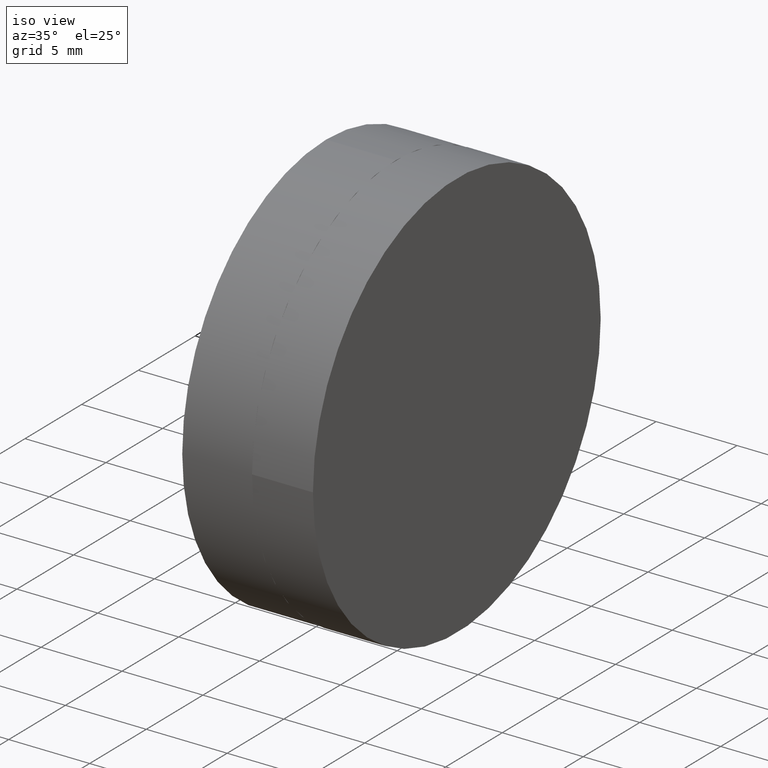
[diagram: clean part render]
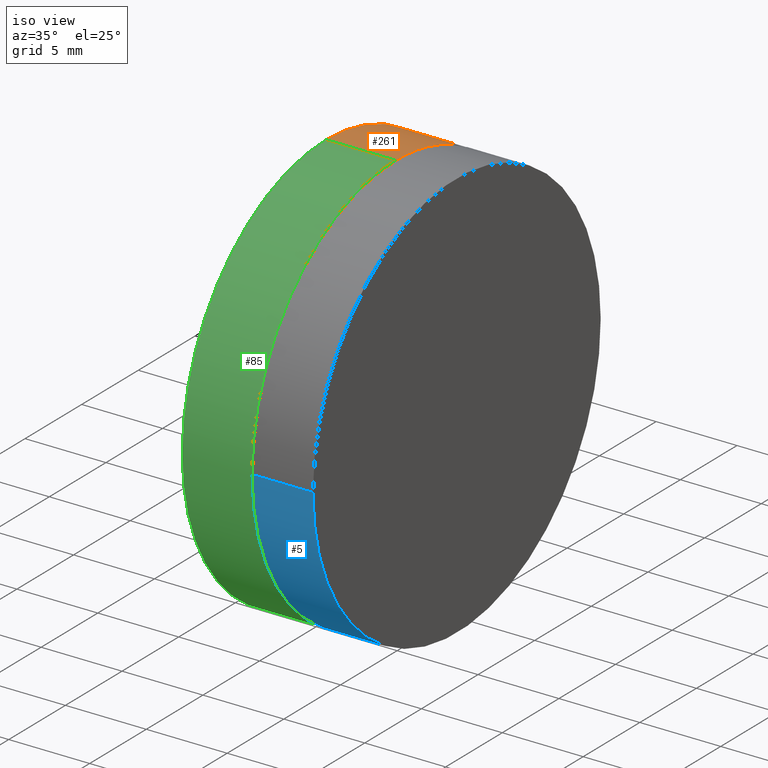
[diagram: same view with three faces highlighted in distinct colors, each labeled with its STEP entity id]
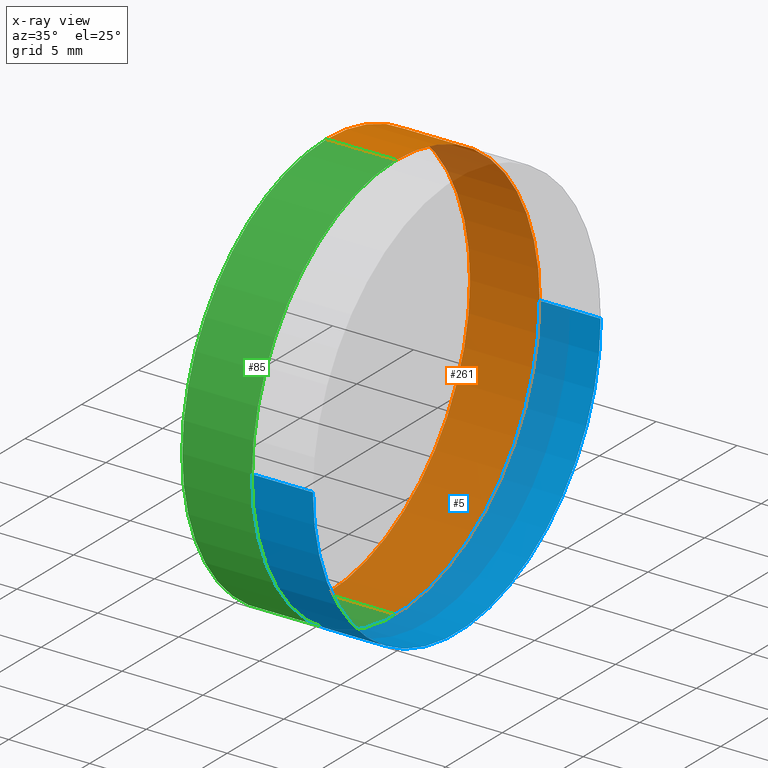
[diagram: x-ray of the same camera — body ghosted, the three highlighted faces saturated]
A machine part, iso view with three faces highlighted in distinct colors.
The next image is the same camera in x-ray (body ghosted, the three faces saturated) — at least one of them is partly hidden behind the body in this view.
Their STEP definitions:

[orange] entity #261 — the highlighted cylindrical surface (partial cylindrical patch) has radius 12.7 mm, axis along (-1, -0, -0).
#4 = AXIS2_PLACEMENT_3D ( 'NONE', #211, #178, #205 ) ;
#15 = DIRECTION ( 'NONE',  ( -1.000000000000000000, -0.000000000000000000, -0.000000000000000000 ) ) ;
#22 = DIRECTION ( 'NONE',  ( 0.000000000000000000, 0.000000000000000000, 1.000000000000000000 ) ) ;
#27 = EDGE_CURVE ( 'NONE', #126, #32, #132, .T. ) ;
#32 = VERTEX_POINT ( 'NONE', #98 ) ;
#33 = DIRECTION ( 'NONE',  ( -1.000000000000000000, -0.000000000000000000, -0.000000000000000000 ) ) ;
#39 = ORIENTED_EDGE ( 'NONE', *, *, #44, .F. ) ;
#44 = EDGE_CURVE ( 'NONE', #134, #212, #218, .T. ) ;
#45 = EDGE_LOOP ( 'NONE', ( #120, #241, #368, #364, #39, #96 ) ) ;
#51 = DIRECTION ( 'NONE',  ( -1.000000000000000000, -0.000000000000000000, -0.000000000000000000 ) ) ;
#53 = CARTESIAN_POINT ( 'NONE',  ( -31.82558590161919909, 32.49878037169512623, 12.69999999999999929 ) ) ;
#57 = AXIS2_PLACEMENT_3D ( 'NONE', #310, #15, #307 ) ;
#70 = CYLINDRICAL_SURFACE ( 'NONE', #78, 12.69999999999999929 ) ;
#78 = AXIS2_PLACEMENT_3D ( 'NONE', #99, #302, #243 ) ;
#79 = CARTESIAN_POINT ( 'NONE',  ( -37.05941295107898981, 32.49878037169512623, -12.69999999999999929 ) ) ;
#96 = ORIENTED_EDGE ( 'NONE', *, *, #149, .T. ) ;
#98 = CARTESIAN_POINT ( 'NONE',  ( -36.13668689039688076, 32.49878037169512623, -12.69999999999999929 ) ) ;
#99 = CARTESIAN_POINT ( 'NONE',  ( -37.05941295107898981, 32.49878037169512623, 0.000000000000000000 ) ) ;
#102 = CARTESIAN_POINT ( 'NONE',  ( -31.82558590161919909, 32.49878037169512623, -12.69999999999999929 ) ) ;
#103 = VERTEX_POINT ( 'NONE', #172 ) ;
#110 = EDGE_CURVE ( 'NONE', #298, #32, #286, .T. ) ;
#120 = ORIENTED_EDGE ( 'NONE', *, *, #208, .T. ) ;
#126 = VERTEX_POINT ( 'NONE', #314 ) ;
#132 = CIRCLE ( 'NONE', #57, 12.69999999999999929 ) ;
#134 = VERTEX_POINT ( 'NONE', #53 ) ;
#149 = EDGE_CURVE ( 'NONE', #134, #103, #240, .T. ) ;
#157 = VECTOR ( 'NONE', #51, 1000.000000000000000 ) ;
#167 = DIRECTION ( 'NONE',  ( -1.000000000000000000, -0.000000000000000000, -0.000000000000000000 ) ) ;
#172 = CARTESIAN_POINT ( 'NONE',  ( -31.82558590161920620, 45.19878037169512197, 0.000000000000000000 ) ) ;
#178 = DIRECTION ( 'NONE',  ( -1.000000000000000000, -0.000000000000000000, -0.000000000000000000 ) ) ;
#182 = CIRCLE ( 'NONE', #4, 12.69999999999999929 ) ;
#203 = CARTESIAN_POINT ( 'NONE',  ( -36.13668689039688076, 32.49878037169512623, 0.000000000000000000 ) ) ;
#205 = DIRECTION ( 'NONE',  ( 0.000000000000000000, 0.000000000000000000, 1.000000000000000000 ) ) ;
#208 = EDGE_CURVE ( 'NONE', #103, #298, #182, .T. ) ;
#211 = CARTESIAN_POINT ( 'NONE',  ( -31.82558590161919909, 32.49878037169512623, 0.000000000000000000 ) ) ;
#212 = VERTEX_POINT ( 'NONE', #300 ) ;
#218 = LINE ( 'NONE', #249, #157 ) ;
#219 = CIRCLE ( 'NONE', #330, 12.69999999999999929 ) ;
#226 = EDGE_CURVE ( 'NONE', #212, #126, #219, .T. ) ;
#239 = DIRECTION ( 'NONE',  ( 0.000000000000000000, 0.000000000000000000, 1.000000000000000000 ) ) ;
#240 = CIRCLE ( 'NONE', #264, 12.69999999999999929 ) ;
#241 = ORIENTED_EDGE ( 'NONE', *, *, #110, .T. ) ;
#243 = DIRECTION ( 'NONE',  ( 0.000000000000000000, 0.000000000000000000, 1.000000000000000000 ) ) ;
#249 = CARTESIAN_POINT ( 'NONE',  ( -37.05941295107898981, 32.49878037169512623, 12.69999999999999929 ) ) ;
#261 = ADVANCED_FACE ( 'NONE', ( #266 ), #70, .T. ) ;
#264 = AXIS2_PLACEMENT_3D ( 'NONE', #348, #167, #22 ) ;
#266 = FACE_OUTER_BOUND ( 'NONE', #45, .T. ) ;
#286 = LINE ( 'NONE', #79, #360 ) ;
#298 = VERTEX_POINT ( 'NONE', #102 ) ;
#300 = CARTESIAN_POINT ( 'NONE',  ( -36.13668689039688076, 32.49878037169512623, 12.69999999999999929 ) ) ;
#302 = DIRECTION ( 'NONE',  ( -1.000000000000000000, -0.000000000000000000, -0.000000000000000000 ) ) ;
#307 = DIRECTION ( 'NONE',  ( 0.000000000000000000, 0.000000000000000000, 1.000000000000000000 ) ) ;
#310 = CARTESIAN_POINT ( 'NONE',  ( -36.13668689039688076, 32.49878037169512623, 0.000000000000000000 ) ) ;
#314 = CARTESIAN_POINT ( 'NONE',  ( -36.13668689039688076, 45.19878037169508644, 0.000000000000000000 ) ) ;
#321 = DIRECTION ( 'NONE',  ( -1.000000000000000000, -0.000000000000000000, -0.000000000000000000 ) ) ;
#330 = AXIS2_PLACEMENT_3D ( 'NONE', #203, #33, #239 ) ;
#348 = CARTESIAN_POINT ( 'NONE',  ( -31.82558590161919909, 32.49878037169512623, 0.000000000000000000 ) ) ;
#360 = VECTOR ( 'NONE', #321, 1000.000000000000000 ) ;
#364 = ORIENTED_EDGE ( 'NONE', *, *, #226, .F. ) ;
#368 = ORIENTED_EDGE ( 'NONE', *, *, #27, .F. ) ;

[blue] entity #5 — the highlighted cylindrical surface (partial cylindrical patch) has radius 12.7 mm, axis along (1, 0, -0).
#5 = ADVANCED_FACE ( 'NONE', ( #128 ), #250, .T. ) ;
#6 = EDGE_LOOP ( 'NONE', ( #7, #48, #64, #71 ) ) ;
#7 = ORIENTED_EDGE ( 'NONE', *, *, #271, .F. ) ;
#10 = VECTOR ( 'NONE', #369, 1000.000000000000000 ) ;
#14 = LINE ( 'NONE', #303, #196 ) ;
#20 = CARTESIAN_POINT ( 'NONE',  ( -28.05941295107895428, 45.19878037169511487, 0.000000000000000000 ) ) ;
#30 = DIRECTION ( 'NONE',  ( 0.000000000000000000, 1.000000000000000000, 0.000000000000000000 ) ) ;
#37 = VERTEX_POINT ( 'NONE', #20 ) ;
#43 = VERTEX_POINT ( 'NONE', #275 ) ;
#46 = CARTESIAN_POINT ( 'NONE',  ( -28.05941295107897204, 45.19878037169512197, 0.000000000000000000 ) ) ;
#48 = ORIENTED_EDGE ( 'NONE', *, *, #284, .T. ) ;
#56 = CARTESIAN_POINT ( 'NONE',  ( -28.05941295107895428, 19.79878037169513405, 1.555301434917137841E-15 ) ) ;
#64 = ORIENTED_EDGE ( 'NONE', *, *, #306, .T. ) ;
#71 = ORIENTED_EDGE ( 'NONE', *, *, #256, .F. ) ;
#91 = VERTEX_POINT ( 'NONE', #169 ) ;
#94 = CIRCLE ( 'NONE', #163, 12.69999999999998863 ) ;
#101 = DIRECTION ( 'NONE',  ( 1.000000000000000000, 1.224646799147351975E-16, -0.000000000000000000 ) ) ;
#123 = DIRECTION ( 'NONE',  ( 1.000000000000000000, 1.224646799147351975E-16, -0.000000000000000000 ) ) ;
#128 = FACE_OUTER_BOUND ( 'NONE', #6, .T. ) ;
#147 = CARTESIAN_POINT ( 'NONE',  ( -28.05941295107895428, 32.49878037169512623, 0.000000000000000000 ) ) ;
#148 = VERTEX_POINT ( 'NONE', #56 ) ;
#155 = DIRECTION ( 'NONE',  ( 1.000000000000000000, 1.224646799147351975E-16, -0.000000000000000000 ) ) ;
#163 = AXIS2_PLACEMENT_3D ( 'NONE', #147, #357, #30 ) ;
#169 = CARTESIAN_POINT ( 'NONE',  ( -31.82558590161918488, 19.79878037169516958, 1.555301434917134686E-15 ) ) ;
#171 = AXIS2_PLACEMENT_3D ( 'NONE', #374, #101, #191 ) ;
#191 = DIRECTION ( 'NONE',  ( 0.000000000000000000, 1.000000000000000000, 0.000000000000000000 ) ) ;
#192 = LINE ( 'NONE', #46, #10 ) ;
#196 = VECTOR ( 'NONE', #155, 1000.000000000000000 ) ;
#216 = CARTESIAN_POINT ( 'NONE',  ( -31.82558590161919909, 32.49878037169512623, 0.000000000000000000 ) ) ;
#250 = CYLINDRICAL_SURFACE ( 'NONE', #171, 12.69999999999999574 ) ;
#256 = EDGE_CURVE ( 'NONE', #148, #37, #94, .T. ) ;
#271 = EDGE_CURVE ( 'NONE', #91, #148, #14, .T. ) ;
#274 = AXIS2_PLACEMENT_3D ( 'NONE', #216, #123, #337 ) ;
#275 = CARTESIAN_POINT ( 'NONE',  ( -31.82558590161918488, 45.19878037169509355, 0.000000000000000000 ) ) ;
#281 = CIRCLE ( 'NONE', #274, 12.70000000000000284 ) ;
#284 = EDGE_CURVE ( 'NONE', #91, #43, #281, .T. ) ;
#303 = CARTESIAN_POINT ( 'NONE',  ( -28.05941295107897204, 19.79878037169512695, 1.555301434917138038E-15 ) ) ;
#306 = EDGE_CURVE ( 'NONE', #43, #37, #192, .T. ) ;
#337 = DIRECTION ( 'NONE',  ( 0.000000000000000000, 1.000000000000000000, 0.000000000000000000 ) ) ;
#357 = DIRECTION ( 'NONE',  ( 1.000000000000000000, 1.224646799147351975E-16, -0.000000000000000000 ) ) ;
#369 = DIRECTION ( 'NONE',  ( 1.000000000000000000, 1.224646799147351975E-16, -0.000000000000000000 ) ) ;
#374 = CARTESIAN_POINT ( 'NONE',  ( -28.05941295107897204, 32.49878037169512623, 0.000000000000000000 ) ) ;

[green] entity #85 — the highlighted cylindrical surface (partial cylindrical patch) has radius 12.7 mm, axis along (-1, -0, -0).
#1 = AXIS2_PLACEMENT_3D ( 'NONE', #187, #366, #335 ) ;
#3 = CARTESIAN_POINT ( 'NONE',  ( -36.13668689039688076, 32.49878037169512623, 0.000000000000000000 ) ) ;
#13 = ORIENTED_EDGE ( 'NONE', *, *, #186, .F. ) ;
#23 = CIRCLE ( 'NONE', #354, 12.69999999999999929 ) ;
#32 = VERTEX_POINT ( 'NONE', #98 ) ;
#36 = DIRECTION ( 'NONE',  ( 0.000000000000000000, 0.000000000000000000, 1.000000000000000000 ) ) ;
#41 = FACE_OUTER_BOUND ( 'NONE', #332, .T. ) ;
#44 = EDGE_CURVE ( 'NONE', #134, #212, #218, .T. ) ;
#51 = DIRECTION ( 'NONE',  ( -1.000000000000000000, -0.000000000000000000, -0.000000000000000000 ) ) ;
#53 = CARTESIAN_POINT ( 'NONE',  ( -31.82558590161919909, 32.49878037169512623, 12.69999999999999929 ) ) ;
#79 = CARTESIAN_POINT ( 'NONE',  ( -37.05941295107898981, 32.49878037169512623, -12.69999999999999929 ) ) ;
#81 = DIRECTION ( 'NONE',  ( 0.000000000000000000, 0.000000000000000000, 1.000000000000000000 ) ) ;
#83 = DIRECTION ( 'NONE',  ( -1.000000000000000000, -0.000000000000000000, -0.000000000000000000 ) ) ;
#85 = ADVANCED_FACE ( 'NONE', ( #41 ), #199, .T. ) ;
#87 = EDGE_CURVE ( 'NONE', #298, #272, #23, .T. ) ;
#98 = CARTESIAN_POINT ( 'NONE',  ( -36.13668689039688076, 32.49878037169512623, -12.69999999999999929 ) ) ;
#102 = CARTESIAN_POINT ( 'NONE',  ( -31.82558590161919909, 32.49878037169512623, -12.69999999999999929 ) ) ;
#110 = EDGE_CURVE ( 'NONE', #298, #32, #286, .T. ) ;
#116 = ORIENTED_EDGE ( 'NONE', *, *, #263, .F. ) ;
#127 = DIRECTION ( 'NONE',  ( -1.000000000000000000, -0.000000000000000000, -0.000000000000000000 ) ) ;
#134 = VERTEX_POINT ( 'NONE', #53 ) ;
#139 = DIRECTION ( 'NONE',  ( 0.000000000000000000, 0.000000000000000000, 1.000000000000000000 ) ) ;
#154 = ORIENTED_EDGE ( 'NONE', *, *, #110, .F. ) ;
#157 = VECTOR ( 'NONE', #51, 1000.000000000000000 ) ;
#160 = DIRECTION ( 'NONE',  ( 0.000000000000000000, 0.000000000000000000, 1.000000000000000000 ) ) ;
#173 = AXIS2_PLACEMENT_3D ( 'NONE', #220, #127, #160 ) ;
#184 = DIRECTION ( 'NONE',  ( -1.000000000000000000, -0.000000000000000000, -0.000000000000000000 ) ) ;
#186 = EDGE_CURVE ( 'NONE', #301, #212, #289, .T. ) ;
#187 = CARTESIAN_POINT ( 'NONE',  ( -36.13668689039688076, 32.49878037169512623, 0.000000000000000000 ) ) ;
#199 = CYLINDRICAL_SURFACE ( 'NONE', #339, 12.69999999999999929 ) ;
#200 = DIRECTION ( 'NONE',  ( -1.000000000000000000, -0.000000000000000000, -0.000000000000000000 ) ) ;
#212 = VERTEX_POINT ( 'NONE', #300 ) ;
#218 = LINE ( 'NONE', #249, #157 ) ;
#220 = CARTESIAN_POINT ( 'NONE',  ( -31.82558590161919909, 32.49878037169512623, 0.000000000000000000 ) ) ;
#221 = ORIENTED_EDGE ( 'NONE', *, *, #349, .T. ) ;
#238 = ORIENTED_EDGE ( 'NONE', *, *, #44, .T. ) ;
#245 = AXIS2_PLACEMENT_3D ( 'NONE', #3, #184, #36 ) ;
#249 = CARTESIAN_POINT ( 'NONE',  ( -37.05941295107898981, 32.49878037169512623, 12.69999999999999929 ) ) ;
#263 = EDGE_CURVE ( 'NONE', #32, #301, #295, .T. ) ;
#272 = VERTEX_POINT ( 'NONE', #373 ) ;
#286 = LINE ( 'NONE', #79, #360 ) ;
#289 = CIRCLE ( 'NONE', #245, 12.69999999999999929 ) ;
#290 = CIRCLE ( 'NONE', #173, 12.69999999999999929 ) ;
#291 = CARTESIAN_POINT ( 'NONE',  ( -37.05941295107898981, 32.49878037169512623, 0.000000000000000000 ) ) ;
#295 = CIRCLE ( 'NONE', #1, 12.69999999999999929 ) ;
#298 = VERTEX_POINT ( 'NONE', #102 ) ;
#300 = CARTESIAN_POINT ( 'NONE',  ( -36.13668689039688076, 32.49878037169512623, 12.69999999999999929 ) ) ;
#301 = VERTEX_POINT ( 'NONE', #309 ) ;
#309 = CARTESIAN_POINT ( 'NONE',  ( -36.13668689039688076, 19.79878037169516247, -1.555301434917133699E-15 ) ) ;
#321 = DIRECTION ( 'NONE',  ( -1.000000000000000000, -0.000000000000000000, -0.000000000000000000 ) ) ;
#332 = EDGE_LOOP ( 'NONE', ( #154, #336, #221, #238, #13, #116 ) ) ;
#335 = DIRECTION ( 'NONE',  ( 0.000000000000000000, 0.000000000000000000, 1.000000000000000000 ) ) ;
#336 = ORIENTED_EDGE ( 'NONE', *, *, #87, .T. ) ;
#339 = AXIS2_PLACEMENT_3D ( 'NONE', #291, #200, #81 ) ;
#345 = CARTESIAN_POINT ( 'NONE',  ( -31.82558590161919909, 32.49878037169512623, 0.000000000000000000 ) ) ;
#349 = EDGE_CURVE ( 'NONE', #272, #134, #290, .T. ) ;
#354 = AXIS2_PLACEMENT_3D ( 'NONE', #345, #83, #139 ) ;
#360 = VECTOR ( 'NONE', #321, 1000.000000000000000 ) ;
#366 = DIRECTION ( 'NONE',  ( -1.000000000000000000, -0.000000000000000000, -0.000000000000000000 ) ) ;
#373 = CARTESIAN_POINT ( 'NONE',  ( -31.82558590161920620, 19.79878037169513050, -1.555301434917137841E-15 ) ) ;